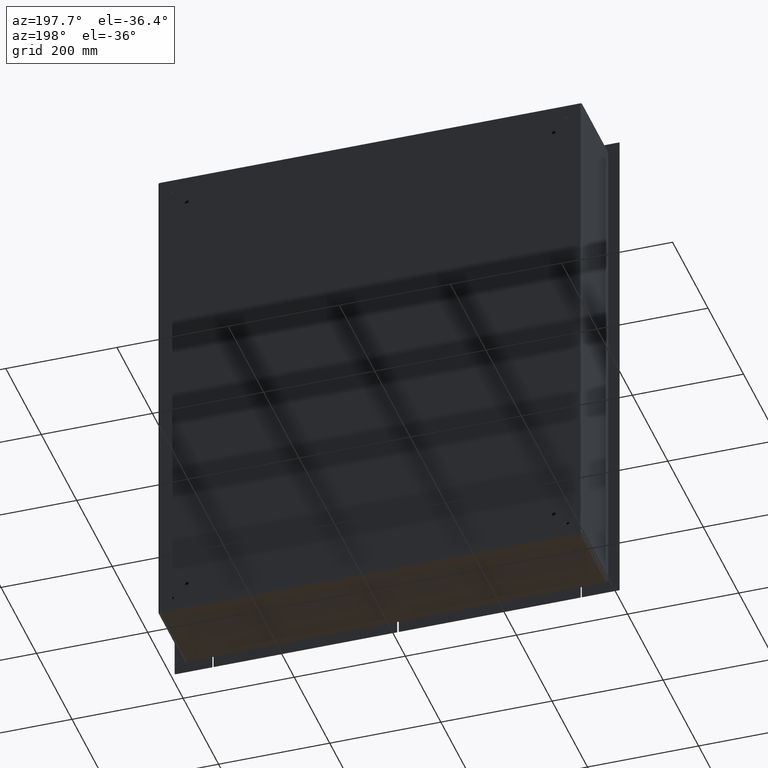
[diagram: clean part render]
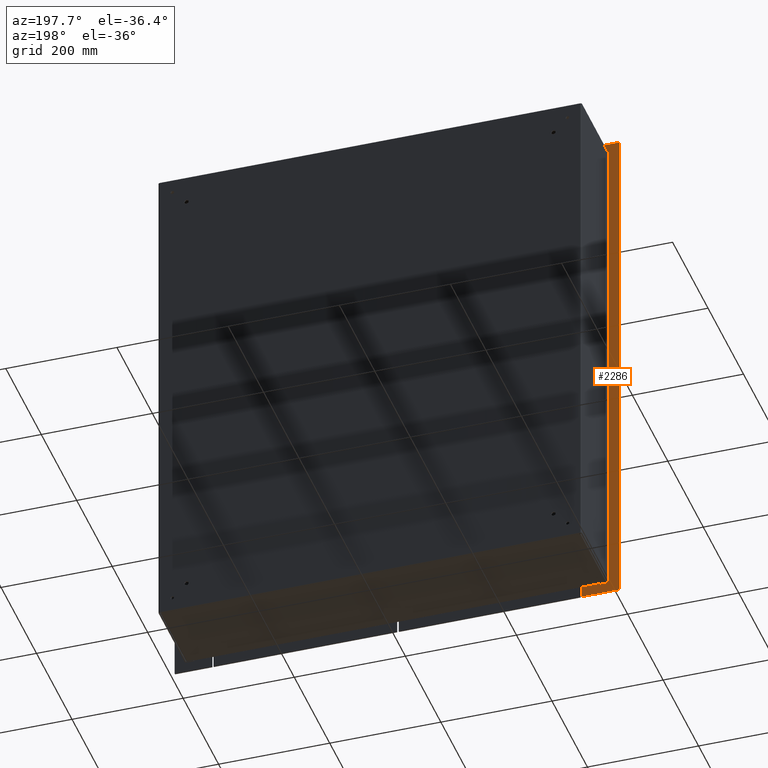
[diagram: same view with one face highlighted and labeled with its STEP entity id]
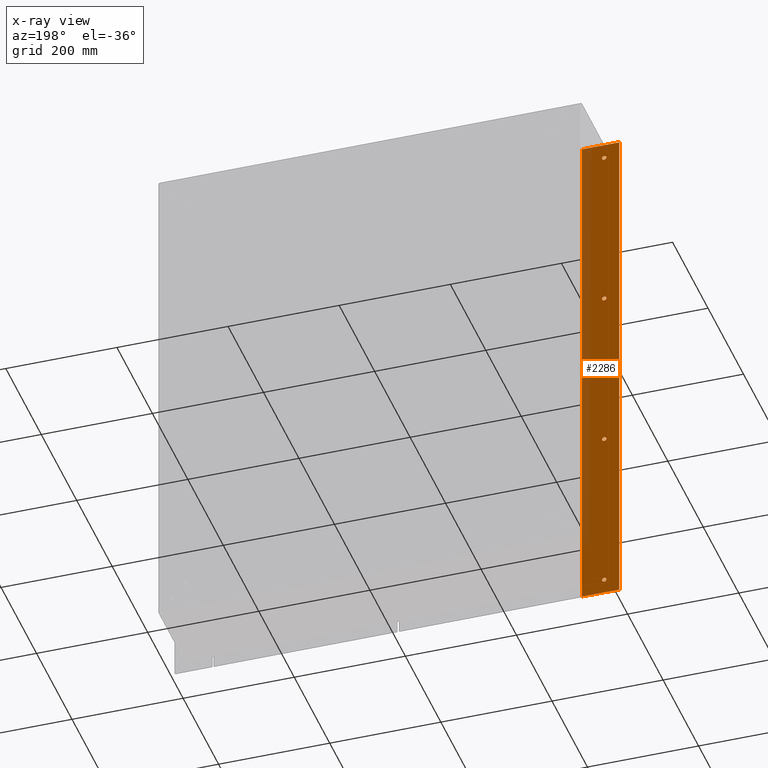
[diagram: x-ray of the same camera — body ghosted, the highlighted face saturated]
A machine part, auxiliary view. The second image highlights one B-rep face of the part: STEP entity #2286.
The next image is the same camera in x-ray: the body ghosted, the highlighted face saturated — about 20% of this face is hidden behind the body in this view.
In plain terms, the highlighted planar face has unit normal (0, -1, 0).
Its self-contained STEP definition (entity closure, byte-faithful):
#2286 = ADVANCED_FACE( '', ( #4406, #4407, #4408, #4409, #4410 ), #4411, .F. );
#4406 = FACE_BOUND( '', #33713, .T. );
#4407 = FACE_BOUND( '', #33714, .T. );
#4408 = FACE_BOUND( '', #33715, .T. );
#4409 = FACE_BOUND( '', #33716, .T. );
#4410 = FACE_OUTER_BOUND( '', #33717, .T. );
#4411 = PLANE( '', #33718 );
#33713 = EDGE_LOOP( '', ( #38796 ) );
#33714 = EDGE_LOOP( '', ( #38797 ) );
#33715 = EDGE_LOOP( '', ( #38798 ) );
#33716 = EDGE_LOOP( '', ( #38799 ) );
#33717 = EDGE_LOOP( '', ( #38800, #38801, #38802, #38803 ) );
#33718 = AXIS2_PLACEMENT_3D( '', #38804, #38805, #38806 );
#38796 = ORIENTED_EDGE( '', *, *, #40587, .F. );
#38797 = ORIENTED_EDGE( '', *, *, #38919, .F. );
#38798 = ORIENTED_EDGE( '', *, *, #39881, .F. );
#38799 = ORIENTED_EDGE( '', *, *, #39806, .F. );
#38800 = ORIENTED_EDGE( '', *, *, #40690, .F. );
#38801 = ORIENTED_EDGE( '', *, *, #40888, .F. );
#38802 = ORIENTED_EDGE( '', *, *, #40319, .F. );
#38803 = ORIENTED_EDGE( '', *, *, #38992, .F. );
#38804 = CARTESIAN_POINT( '', ( 0.000000000000000, 1.90500000000000, 0.000000000000000 ) );
#38805 = DIRECTION( '', ( 0.000000000000000, -1.00000000000000, 0.000000000000000 ) );
#38806 = DIRECTION( '', ( 0.000000000000000, 0.000000000000000, -1.00000000000000 ) );
#38919 = EDGE_CURVE( '', #40947, #40947, #40948, .F. );
#38992 = EDGE_CURVE( '', #41079, #41081, #41082, .T. );
#39806 = EDGE_CURVE( '', #42439, #42439, #42440, .F. );
#39881 = EDGE_CURVE( '', #42549, #42549, #42550, .F. );
#40319 = EDGE_CURVE( '', #41081, #43166, #43167, .T. );
#40587 = EDGE_CURVE( '', #43508, #43508, #43509, .F. );
#40690 = EDGE_CURVE( '', #43627, #41079, #43629, .T. );
#40888 = EDGE_CURVE( '', #43166, #43627, #43843, .T. );
#40947 = VERTEX_POINT( '', #43909 );
#40948 = CIRCLE( '', #43910, 3.96240000000000 );
#41079 = VERTEX_POINT( '', #44206 );
#41081 = VERTEX_POINT( '', #44209 );
#41082 = LINE( '', #44210, #44211 );
#42439 = VERTEX_POINT( '', #47401 );
#42440 = CIRCLE( '', #47402, 3.96240000000000 );
#42549 = VERTEX_POINT( '', #47656 );
#42550 = CIRCLE( '', #47657, 3.96240000000000 );
#43166 = VERTEX_POINT( '', #48935 );
#43167 = LINE( '', #48936, #48937 );
#43508 = VERTEX_POINT( '', #49671 );
#43509 = CIRCLE( '', #49672, 3.96240000000000 );
#43627 = VERTEX_POINT( '', #49926 );
#43629 = LINE( '', #49929, #49930 );
#43843 = LINE( '', #50357, #50358 );
#43909 = CARTESIAN_POINT( '', ( -6.75640000000000, 1.90500000000005, 145.791766666667 ) );
#43910 = AXIS2_PLACEMENT_3D( '', #50409, #50410, #50411 );
#44206 = CARTESIAN_POINT( '', ( -33.7439000000000, 1.90500000000000, -476.250000000000 ) );
#44209 = CARTESIAN_POINT( '', ( 33.7439000000000, 1.90500000000000, -476.250000000000 ) );
#44210 = CARTESIAN_POINT( '', ( -33.7439000000000, 1.90500000000000, -476.250000000000 ) );
#44211 = VECTOR( '', #50476, 1000.00000000000 );
#47401 = CARTESIAN_POINT( '', ( -6.75640000000000, 1.90500000000005, -453.224900000000 ) );
#47402 = AXIS2_PLACEMENT_3D( '', #51306, #51307, #51308 );
#47656 = CARTESIAN_POINT( '', ( -6.75640000000000, 1.90500000000005, -153.716566666667 ) );
#47657 = AXIS2_PLACEMENT_3D( '', #51374, #51375, #51376 );
#48935 = CARTESIAN_POINT( '', ( 33.7439000000000, 1.90500000000000, 476.250000000000 ) );
#48936 = CARTESIAN_POINT( '', ( 33.7439000000000, 1.90500000000000, -476.250000000000 ) );
#48937 = VECTOR( '', #51814, 1000.00000000000 );
#49671 = CARTESIAN_POINT( '', ( -6.75640000000000, 1.90500000000005, 445.300100000000 ) );
#49672 = AXIS2_PLACEMENT_3D( '', #52039, #52040, #52041 );
#49926 = CARTESIAN_POINT( '', ( -33.7439000000000, 1.90500000000000, 476.250000000000 ) );
#49929 = CARTESIAN_POINT( '', ( -33.7439000000000, 1.90500000000000, 476.250000000000 ) );
#49930 = VECTOR( '', #52122, 1000.00000000000 );
#50357 = CARTESIAN_POINT( '', ( 33.7439000000000, 1.90500000000000, 476.250000000000 ) );
#50358 = VECTOR( '', #52222, 1000.00000000000 );
#50409 = CARTESIAN_POINT( '', ( -6.75640000000000, 1.90500000000005, 149.754166666667 ) );
#50410 = DIRECTION( '', ( 0.000000000000000, -1.00000000000000, 0.000000000000000 ) );
#50411 = DIRECTION( '', ( 0.000000000000000, 0.000000000000000, -1.00000000000000 ) );
#50476 = DIRECTION( '', ( 1.00000000000000, 0.000000000000000, 0.000000000000000 ) );
#51306 = CARTESIAN_POINT( '', ( -6.75640000000000, 1.90500000000005, -449.262500000000 ) );
#51307 = DIRECTION( '', ( 0.000000000000000, -1.00000000000000, 0.000000000000000 ) );
#51308 = DIRECTION( '', ( 0.000000000000000, 0.000000000000000, -1.00000000000000 ) );
#51374 = CARTESIAN_POINT( '', ( -6.75640000000000, 1.90500000000005, -149.754166666667 ) );
#51375 = DIRECTION( '', ( 0.000000000000000, -1.00000000000000, 0.000000000000000 ) );
#51376 = DIRECTION( '', ( 0.000000000000000, 0.000000000000000, -1.00000000000000 ) );
#51814 = DIRECTION( '', ( 0.000000000000000, 0.000000000000000, 1.00000000000000 ) );
#52039 = CARTESIAN_POINT( '', ( -6.75640000000000, 1.90500000000005, 449.262500000000 ) );
#52040 = DIRECTION( '', ( 0.000000000000000, -1.00000000000000, 0.000000000000000 ) );
#52041 = DIRECTION( '', ( 0.000000000000000, 0.000000000000000, -1.00000000000000 ) );
#52122 = DIRECTION( '', ( 0.000000000000000, 0.000000000000000, -1.00000000000000 ) );
#52222 = DIRECTION( '', ( -1.00000000000000, 0.000000000000000, 0.000000000000000 ) );